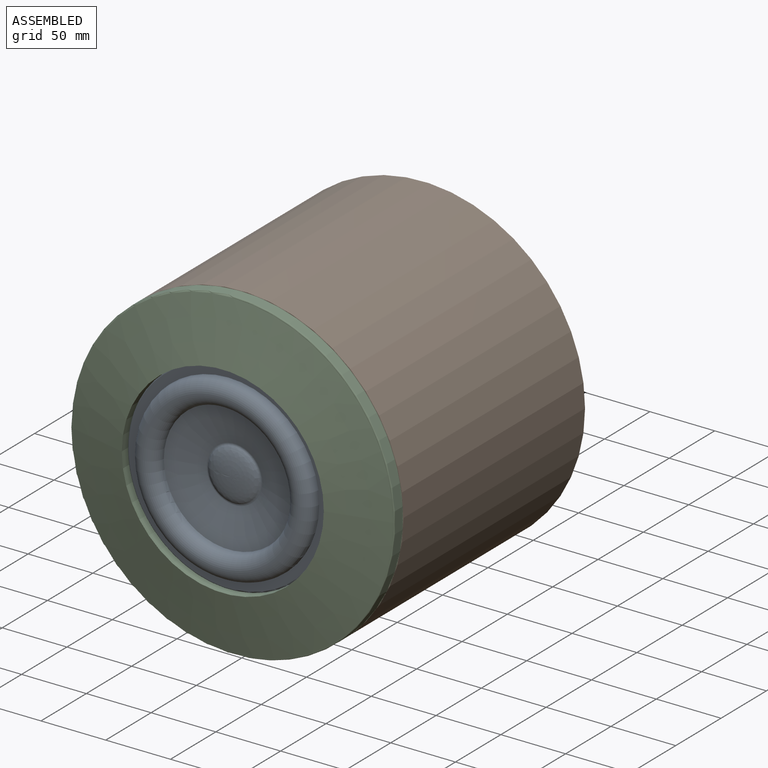
[diagram: assembled view]
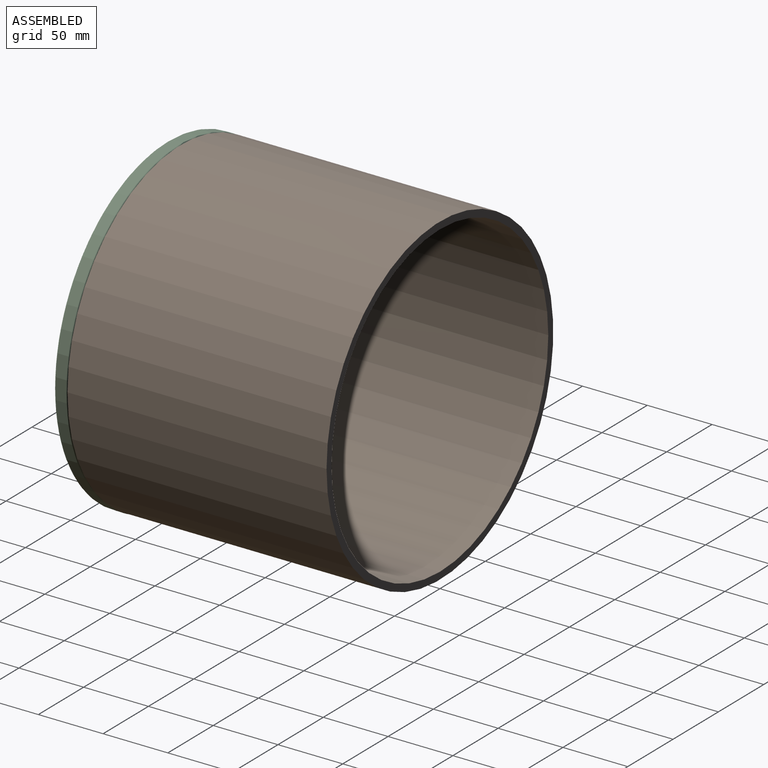
[diagram: assembled view, second angle]
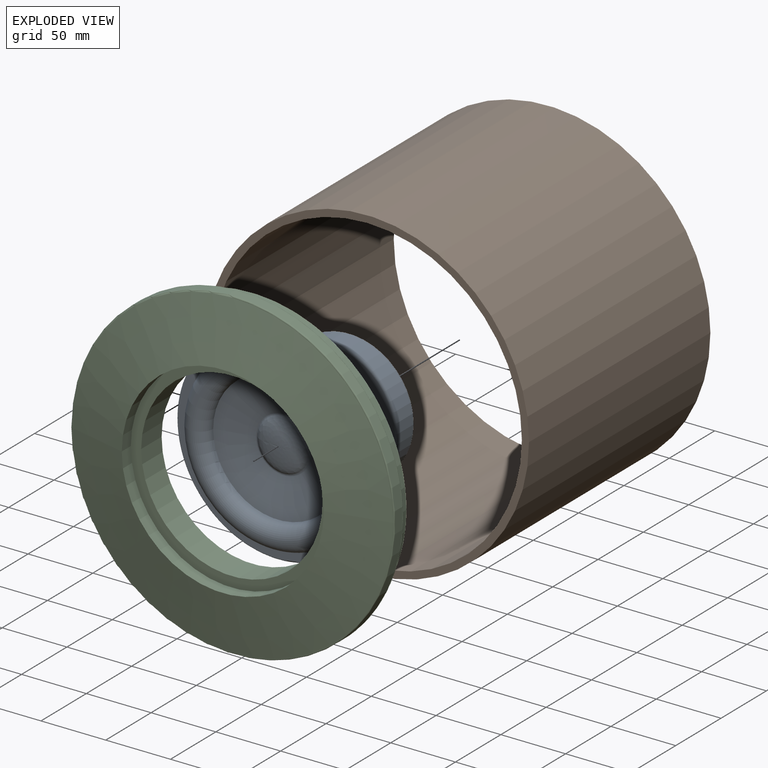
[diagram: exploded view]
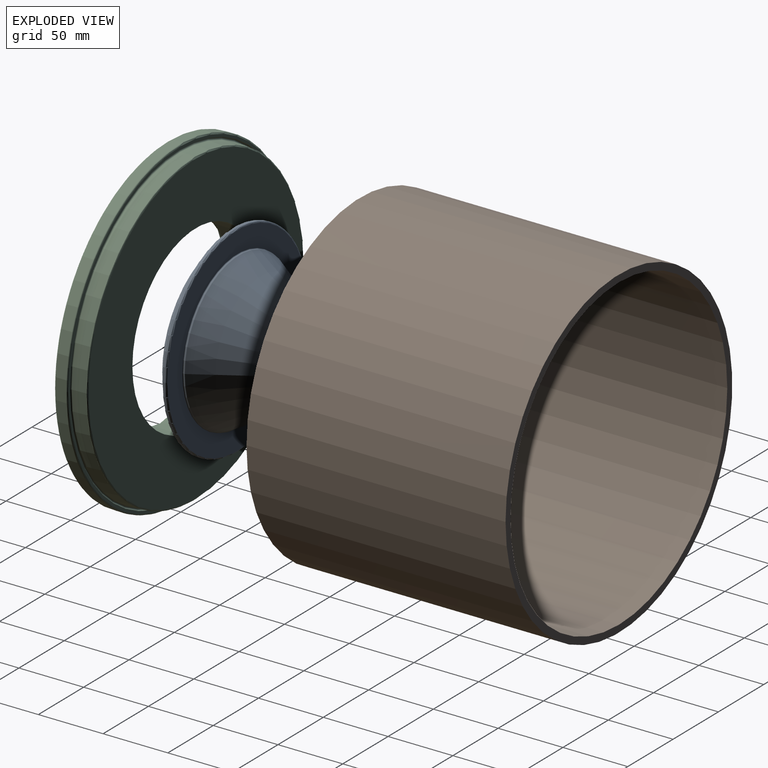
[diagram: exploded view, second angle]
ASSEMBLY  parts=3 mates=2
PART A: 24 faces, bbox 168.9x168.9x94.6 mm
  f0: torus R=60mm, axis (0,0,1), area 11843.5mm2, adj f1,f3
  f1: cone r=50mm half-angle=77.2deg, axis (0,0,1), area 6556.5mm2, adj f0,f2
  f2: torus R=21.11mm, axis (0,0,-1), area 282.9mm2, adj f1
  f3: plane 154x154mm, normal (0,0,1), area 3232.7mm2, adj f0,f4
  f4: torus R=77mm, axis (0,0,1), area 766.2mm2, adj f3,f5
  f5: cylinder r=78mm len=156mm, axis (0,0,1), area 784.1mm2, adj f4,f6
  f6: torus R=77mm, axis (0,0,1), area 766.2mm2, adj f5,f7
  f7: plane 154x154mm, normal (0,0,-1), area 7127.5mm2, adj f6,f8
  f8: torus R=60.5mm, axis (0,0,1), area 297mm2, adj f7,f9
  f9: cylinder r=60mm len=120mm, axis (0,0,1), area 324.3mm2, adj f8,f10
  f10: torus R=59.5mm, axis (0,0,1), area 102.7mm2, adj f9,f11
  f11: cone r=59.93mm half-angle=31.2deg, axis (0,0,1), area 16312.9mm2, adj f10,f12
  f12: cylinder r=30mm len=60mm, axis (0,0,1), area 565.5mm2, adj f11,f13
  f13: torus R=32mm, axis (0,0,1), area 606.5mm2, adj f12,f14
  f14: plane 96x96mm, normal (0,0,1), area 4021.2mm2, adj f13,f15
  f15: torus R=48mm, axis (0,0,1), area 972.6mm2, adj f14,f16
  f16: cylinder r=50mm len=100mm, axis (0,0,1), area 5026.5mm2, adj f15,f17
  f17: torus R=48mm, axis (0,0,1), area 972.6mm2, adj f16,f18
  f18: plane 96x96mm, normal (0,0,-1), area 4021.2mm2, adj f17,f19
  f19: torus R=32mm, axis (0,0,1), area 606.5mm2, adj f18,f20
  f20: cylinder r=30mm len=60mm, axis (0,0,1), area 188.5mm2, adj f19,f21
  f21: torus R=28mm, axis (0,0,1), area 577.8mm2, adj f20,f22
  f22: plane 56x56mm, normal (0,0,-1), area 2463mm2, adj f21
  f23: revolved ~39.16x19.58mm, area 0mm2
PART B: 4 faces, bbox 250x200x250 mm
  f0: cylinder r=119.5mm len=239mm, axis (0,-1,0), area 150168.1mm2, adj f2,f3
  f1: cylinder r=125mm len=250mm, axis (0,-1,0), area 157079.6mm2, adj f2,f3
  f2: plane 250x250mm, normal (0,1,0), area 4224.7mm2, adj f0,f1
  f3: plane 250x250mm, normal (0,-1,0), area 4224.7mm2, adj f0,f1
PART C: 13 faces, bbox 270.6x270.6x32.5 mm
  f0: sphere r=120mm, area 5042.3mm2, adj f1,f12
  f1: cone r=119.93mm half-angle=1deg, axis (0,0,-1), area 3014.7mm2, adj f0,f2
  f2: torus R=121mm, axis (0,0,-1), area 2377.5mm2, adj f1,f3
  f3: plane 248x248mm, normal (0,0,1), area 1545.7mm2, adj f2,f4
  f4: torus R=124mm, axis (0,0,-1), area 1230.1mm2, adj f3,f5
  f5: cylinder r=125mm len=250mm, axis (0,0,-1), area 6283.2mm2, adj f4,f6
  f6: torus R=124mm, axis (0,0,-1), area 1230.1mm2, adj f5,f7
  f7: cone r=78mm half-angle=76.6deg, axis (0,0,1), area 30003.3mm2, adj f6,f8
  f8: cylinder r=78mm len=156mm, axis (0,0,-1), area 4900.9mm2, adj f7,f9
  f9: plane 156x156mm, normal (0,0,-1), area 3719.6mm2, adj f8,f10
  f10: cylinder r=70mm len=140mm, axis (0,0,-1), area 9904.6mm2, adj f9,f11
  f11: plane 237.05x237.05mm, normal (0,0,1), area 28741.5mm2, adj f10,f12
  f12: torus R=118.53mm, axis (0,0,-1), area 1109.1mm2, adj f0,f11
PLACE A rot(axis=(1,0,0),90deg) t=(0,-12.72,0)mm
PLACE B at identity fixed
PLACE C rot(axis=(-1,0,0),90deg) t=(0,-5,0)mm
MATE fastened A.f0 <-> C.f7  axis (0,1,0) through (0,-10.92,0)mm
MATE fastened C.f4 <-> B.f0  axis (0,1,0) through (0,0,0)mm
